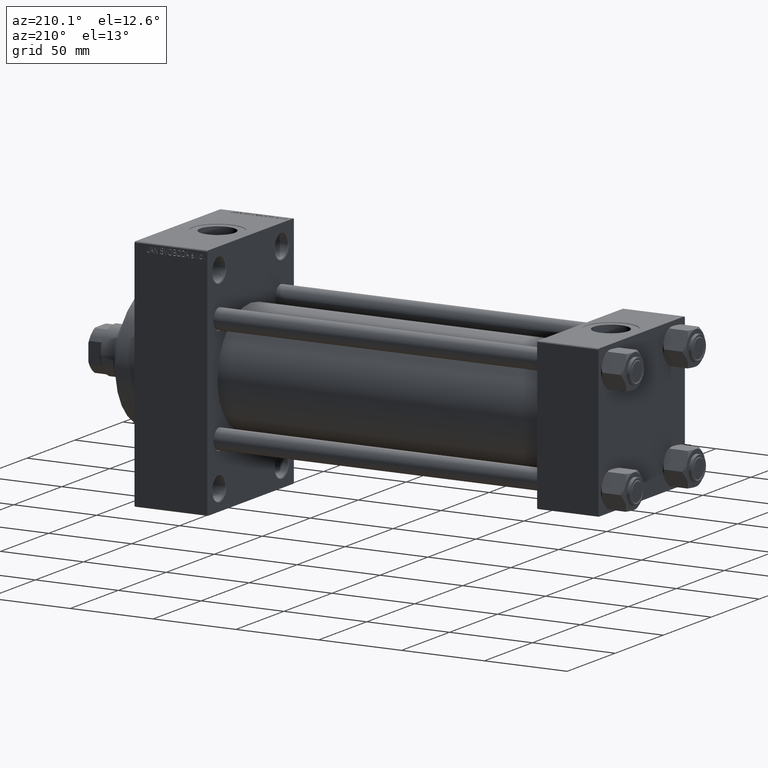
[diagram: clean part render]
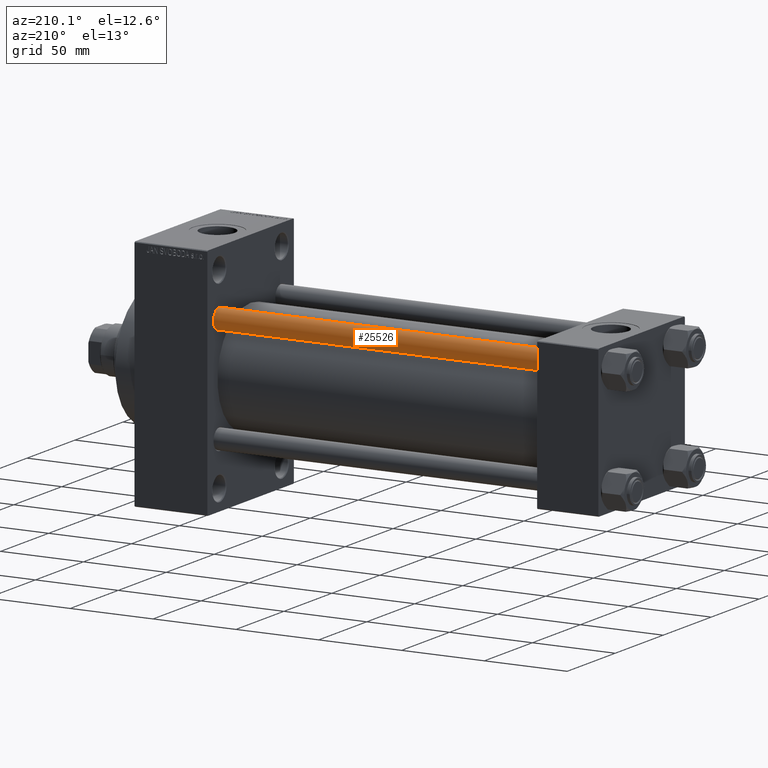
[diagram: same view with one face highlighted and labeled with its STEP entity id]
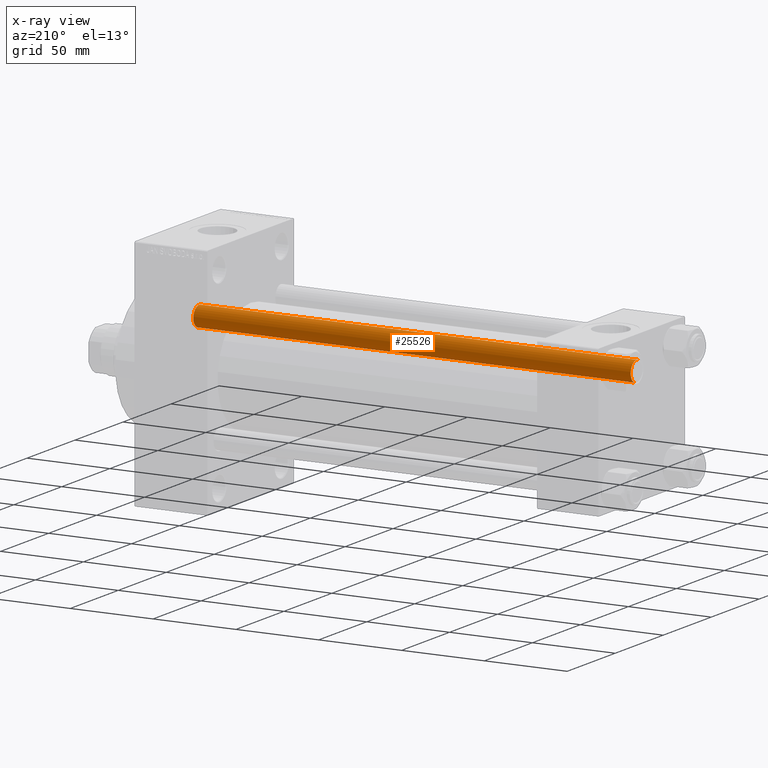
[diagram: x-ray of the same camera — body ghosted, the highlighted face saturated]
A machine part, auxiliary view. The second image highlights one B-rep face of the part: STEP entity #25526.
The next image is the same camera in x-ray: the body ghosted, the highlighted face saturated — about 0% of this face is hidden behind the body in this view.
In plain terms, the highlighted cylindrical surface (edge-blend (fillet) strip) has radius 6 mm, axis along (-1, -0, 0).
Its self-contained STEP definition (entity closure, byte-faithful):
#805 = DIRECTION ( 'NONE',  ( -0.000000000000000000, -0.000000000000000000, -1.000000000000000000 ) ) ;
#4388 = CYLINDRICAL_SURFACE ( 'NONE', #24350, 6.000000000000000888 ) ;
#4842 = VERTEX_POINT ( 'NONE', #43568 ) ;
#5586 = CARTESIAN_POINT ( 'NONE',  ( 0.000000000000000000, 0.000000000000000000, 264.5000000000000000 ) ) ;
#5752 = DIRECTION ( 'NONE',  ( -0.000000000000000000, -0.000000000000000000, -1.000000000000000000 ) ) ;
#7256 = CARTESIAN_POINT ( 'NONE',  ( 6.000000000000000888, 7.347880794884120722E-16, 264.5000000000000000 ) ) ;
#8677 = FACE_OUTER_BOUND ( 'NONE', #36581, .T. ) ;
#8881 = CIRCLE ( 'NONE', #35533, 6.000000000000000888 ) ;
#9830 = EDGE_CURVE ( 'NONE', #22023, #18125, #8881, .T. ) ;
#12714 = CARTESIAN_POINT ( 'NONE',  ( 0.000000000000000000, 0.000000000000000000, 265.0000000000000000 ) ) ;
#17449 = ORIENTED_EDGE ( 'NONE', *, *, #9830, .T. ) ;
#18125 = VERTEX_POINT ( 'NONE', #7256 ) ;
#18294 = DIRECTION ( 'NONE',  ( -0.000000000000000000, -0.000000000000000000, 1.000000000000000000 ) ) ;
#20495 = VERTEX_POINT ( 'NONE', #30293 ) ;
#21015 = ORIENTED_EDGE ( 'NONE', *, *, #33332, .F. ) ;
#21407 = DIRECTION ( 'NONE',  ( 1.000000000000000000, 0.000000000000000000, 0.000000000000000000 ) ) ;
#21976 = CARTESIAN_POINT ( 'NONE',  ( -6.000000000000000888, 0.000000000000000000, 264.5000000000000000 ) ) ;
#22023 = VERTEX_POINT ( 'NONE', #21976 ) ;
#22133 = VECTOR ( 'NONE', #24808, 1000.000000000000000 ) ;
#24350 = AXIS2_PLACEMENT_3D ( 'NONE', #12714, #805, #27257 ) ;
#24808 = DIRECTION ( 'NONE',  ( -0.000000000000000000, -0.000000000000000000, -1.000000000000000000 ) ) ;
#25037 = LINE ( 'NONE', #35778, #22133 ) ;
#25526 = ADVANCED_FACE ( 'NONE', ( #8677 ), #4388, .T. ) ;
#27257 = DIRECTION ( 'NONE',  ( -1.000000000000000000, 0.000000000000000000, 0.000000000000000000 ) ) ;
#27332 = EDGE_CURVE ( 'NONE', #4842, #20495, #28161, .T. ) ;
#28161 = CIRCLE ( 'NONE', #45716, 6.000000000000000888 ) ;
#30293 = CARTESIAN_POINT ( 'NONE',  ( -6.000000000000000888, 0.000000000000000000, 0.5000000000000004441 ) ) ;
#32072 = EDGE_CURVE ( 'NONE', #18125, #4842, #25037, .T. ) ;
#33332 = EDGE_CURVE ( 'NONE', #22023, #20495, #34847, .T. ) ;
#33524 = ORIENTED_EDGE ( 'NONE', *, *, #32072, .T. ) ;
#34847 = LINE ( 'NONE', #39143, #41988 ) ;
#35533 = AXIS2_PLACEMENT_3D ( 'NONE', #5586, #45444, #38034 ) ;
#35778 = CARTESIAN_POINT ( 'NONE',  ( 6.000000000000000888, 7.347880794884120722E-16, 265.0000000000000000 ) ) ;
#36581 = EDGE_LOOP ( 'NONE', ( #17449, #33524, #42693, #21015 ) ) ;
#38034 = DIRECTION ( 'NONE',  ( 1.000000000000000000, 0.000000000000000000, 0.000000000000000000 ) ) ;
#39143 = CARTESIAN_POINT ( 'NONE',  ( -6.000000000000000888, 0.000000000000000000, 265.0000000000000000 ) ) ;
#39317 = CARTESIAN_POINT ( 'NONE',  ( 0.000000000000000000, 0.000000000000000000, 0.5000000000000004441 ) ) ;
#41988 = VECTOR ( 'NONE', #5752, 1000.000000000000000 ) ;
#42693 = ORIENTED_EDGE ( 'NONE', *, *, #27332, .T. ) ;
#43568 = CARTESIAN_POINT ( 'NONE',  ( 6.000000000000000888, 7.347880794884120722E-16, 0.5000000000000004441 ) ) ;
#45444 = DIRECTION ( 'NONE',  ( 0.000000000000000000, 0.000000000000000000, -1.000000000000000000 ) ) ;
#45716 = AXIS2_PLACEMENT_3D ( 'NONE', #39317, #18294, #21407 ) ;